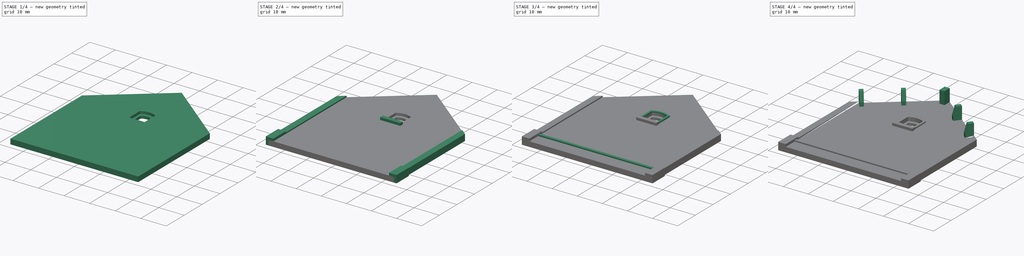
[diagram: build sequence overview — one tinted view per stage of 4, left to right]
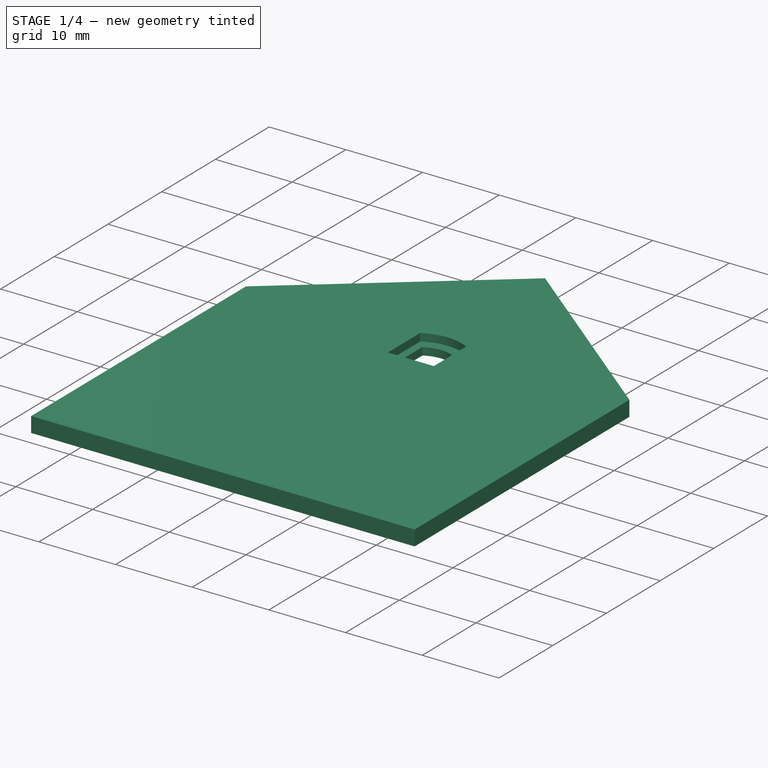
[diagram: stage 1 of 4 — iso view after this stage's code; geometry added in this stage tinted green]
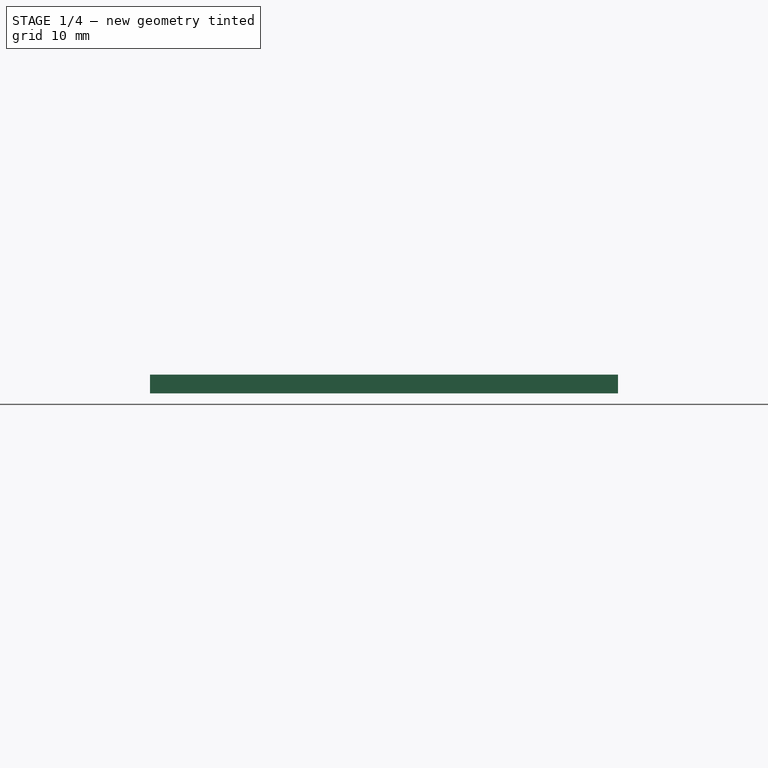
[diagram: stage 1 of 4 — front view after this stage's code; geometry added in this stage tinted green]
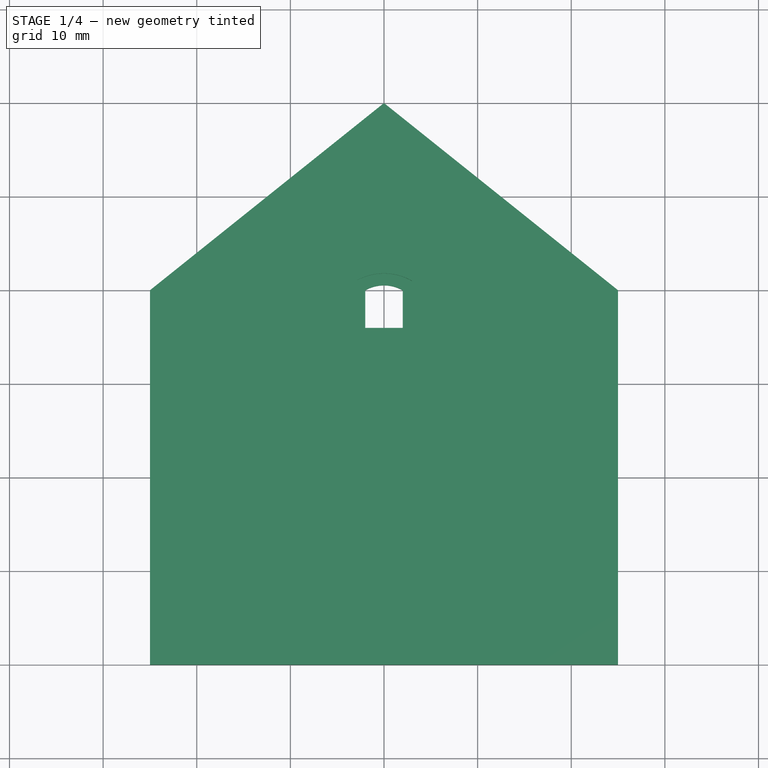
[diagram: stage 1 of 4 — top view after this stage's code; geometry added in this stage tinted green]
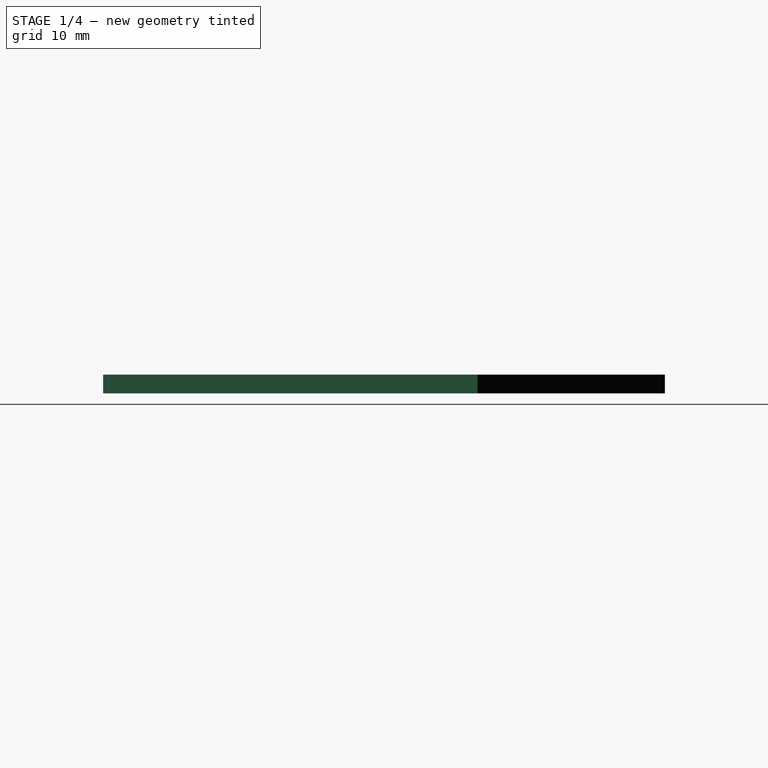
[diagram: stage 1 of 4 — right view after this stage's code; geometry added in this stage tinted green]
FCSTD DOCUMENT  (FreeCAD 0.16R6698 (Git))
Label: 2_1_Face_Arriere
License: All rights reserved
LicenseURL: http://en.wikipedia.org/wiki/All_rights_reserved
objects: Sketcher::SketchObject×11, PartDesign::Pad×7, PartDesign::Pocket×4
note: 33 computed .brp shape members not serialized (recipe doc carries the construction recipe); baked Part::Feature solids carry a one-line shape summary decoded from their .brp

FEATURE [Sketcher::SketchObject] Sketch
  sketch-geometry (5):
    g0: LineSegment StartX=-25 StartY=-20 StartZ=0 EndX=25 EndY=-20 EndZ=0
    g1: LineSegment StartX=-25 StartY=-20 StartZ=0 EndX=-25 EndY=20 EndZ=0
    g2: LineSegment StartX=-25 StartY=20 StartZ=0 EndX=0 EndY=40 EndZ=0
    g3: LineSegment StartX=0 StartY=40 StartZ=0 EndX=25 EndY=20 EndZ=0
    g4: LineSegment StartX=25 StartY=20 StartZ=0 EndX=25 EndY=-20 EndZ=0
  constraints (14):
    c: Horizontal(g0)
    c: Coincident(g1,g0)
    c: Coincident(g2,g1)
    c: PointOnObject(g2,g-2)
    c: Coincident(g3,g2)
    c: Coincident(g4,g3)
    c: Vertical(g4)
    c: Coincident(g0,g4)
    c: Symmetric(g0,g0,g-2)
    c: Symmetric(g0,g1,g-1)
    c: Symmetric(g1,g3,g-2)
    c: DistanceY(g1,g2) = 20
    c: DistanceY(g0,g1) = 40
    c: DistanceX(g0,g0) = 50
FEATURE [PartDesign::Pad] Pad
  Length = 2
  Length2 = 100
  Sketch = -> Sketch
  Type = 0
FEATURE [Sketcher::SketchObject] Sketch001
  Placement = pos=(0,0,2) rot=(0,0,1;0rad)
  Support = -> Pad [Face7]
  sketch-geometry (4):
    g0: LineSegment StartX=-3 StartY=15 StartZ=0 EndX=3 EndY=15 EndZ=0
    g1: LineSegment StartX=-3 StartY=15 StartZ=0 EndX=-3 EndY=21 EndZ=0
    g2: LineSegment StartX=3 StartY=15 StartZ=0 EndX=3 EndY=21 EndZ=0
    g3: ArcOfCircle CenterX=0 CenterY=15.8038 CenterZ=0 NormalX=0 NormalY=0 NormalZ=1 Radius=6 StartAngle=1.0472 EndAngle=2.0944
  constraints (13):
    c: Horizontal(g0)
    c: Coincident(g1,g0)
    c: Vertical(g1)
    c: Coincident(g2,g0)
    c: Vertical(g2)
    c: Symmetric(g1,g2,g-2)
    c: DistanceX(g0,g0) = 6
    c: PointOnObject(g3,g-2)
    c: Coincident(g3,g1)
    c: Coincident(g3,g2)
    c: Radius(g3) = 6
    c: DistanceY(g-1,g0) = 15
    c: DistanceY(g0,g1) = 6
FEATURE [PartDesign::Pocket] Pocket
  Length = 1
  Sketch = -> Sketch001
  Type = 0
FEATURE [Sketcher::SketchObject] Sketch002
  Placement = pos=(0,0,1) rot=(0,0,1;0rad)
  Support = -> Pocket [Face12]
  sketch-geometry (4):
    g0: LineSegment StartX=-2 StartY=16 StartZ=0 EndX=2 EndY=16 EndZ=0
    g1: LineSegment StartX=-2 StartY=16 StartZ=0 EndX=-2 EndY=20 EndZ=0
    g2: LineSegment StartX=2 StartY=16 StartZ=0 EndX=2 EndY=20 EndZ=0
    g3: ArcOfCircle CenterX=0 CenterY=16.5359 CenterZ=0 NormalX=0 NormalY=0 NormalZ=1 Radius=4 StartAngle=1.0472 EndAngle=2.0944
  constraints (13):
    c: Horizontal(g0)
    c: Vertical(g1)
    c: Coincident(g2,g0)
    c: Vertical(g2)
    c: Symmetric(g1,g2,g-2)
    c: PointOnObject(g3,g-2)
    c: Coincident(g3,g1)
    c: Coincident(g3,g2)
    c: Coincident(g1,g0)
    c: DistanceY(g-1,g0) = 16
    c: DistanceY(g0,g1) = 4
    c: DistanceX(g0,g0) = 4
    c: Radius(g3) = 4
FEATURE [PartDesign::Pocket] Pocket001
  Length = 5
  Sketch = -> Sketch002
  Type = 0
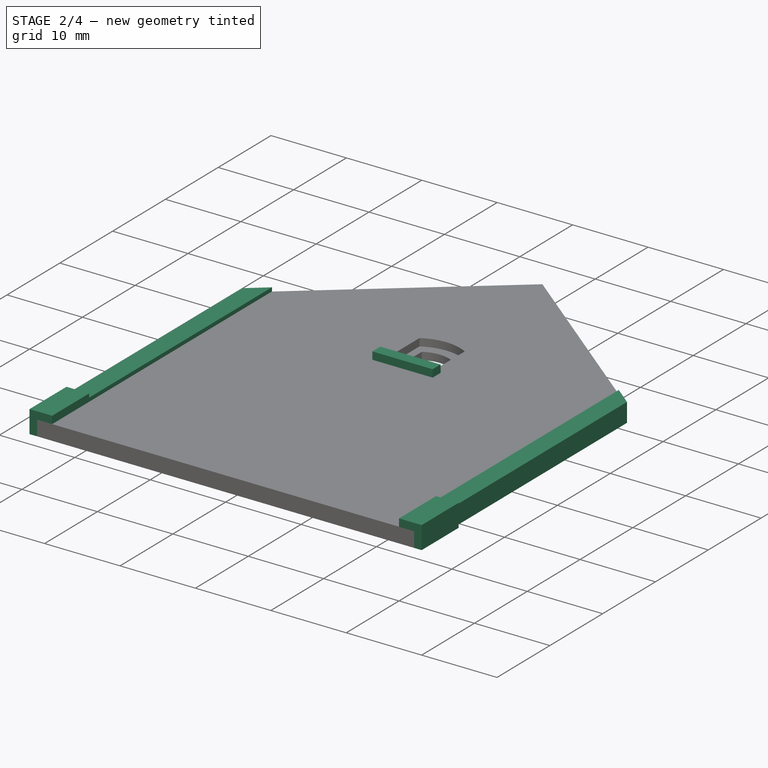
[diagram: stage 2 of 4 — iso view after this stage's code; geometry added in this stage tinted green]
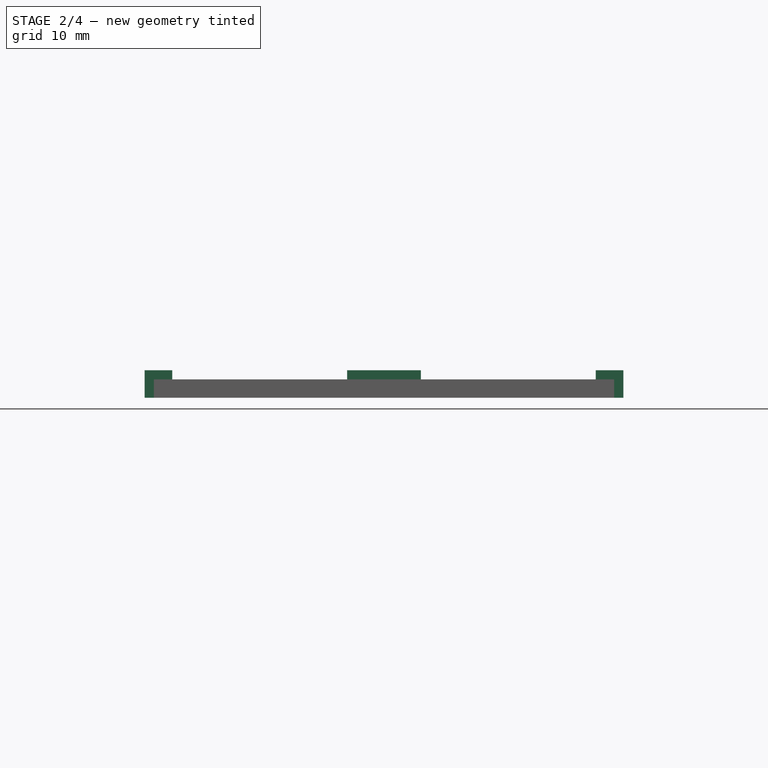
[diagram: stage 2 of 4 — front view after this stage's code; geometry added in this stage tinted green]
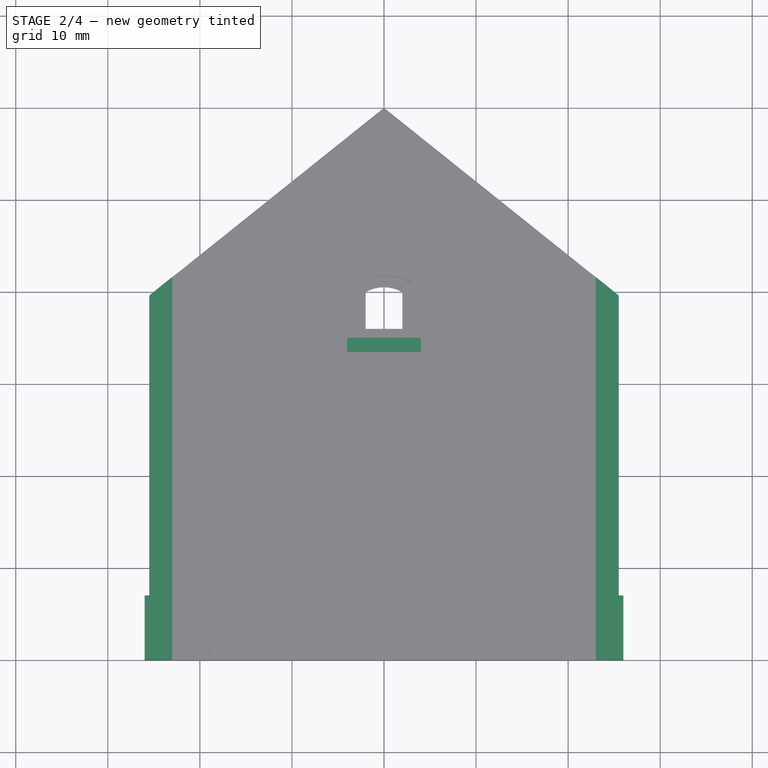
[diagram: stage 2 of 4 — top view after this stage's code; geometry added in this stage tinted green]
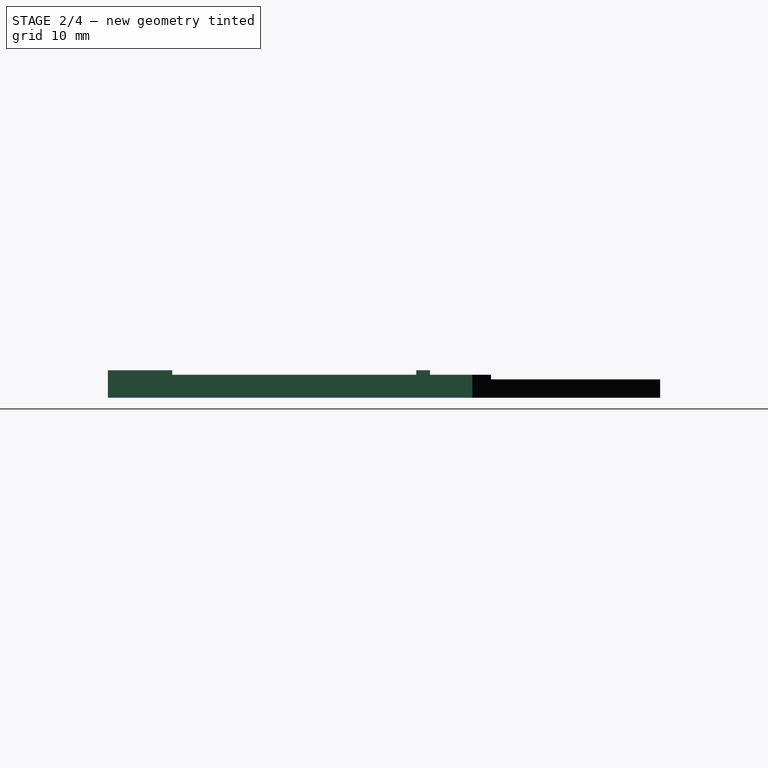
[diagram: stage 2 of 4 — right view after this stage's code; geometry added in this stage tinted green]
FEATURE [Sketcher::SketchObject] Sketch003
  Placement = pos=(0,0,2) rot=(0,0,1;0rad)
  Support = -> Pocket001 [Face5]
  sketch-geometry (4):
    g0: LineSegment StartX=-4 StartY=15 StartZ=0 EndX=4 EndY=15 EndZ=0
    g1: LineSegment StartX=4 StartY=15 StartZ=0 EndX=4 EndY=13.5 EndZ=0
    g2: LineSegment StartX=4 StartY=13.5 StartZ=0 EndX=-4 EndY=13.5 EndZ=0
    g3: LineSegment StartX=-4 StartY=13.5 StartZ=0 EndX=-4 EndY=15 EndZ=0
  constraints (12):
    c: Coincident(g0,g1)
    c: Coincident(g1,g2)
    c: Coincident(g2,g3)
    c: Coincident(g3,g0)
    c: Horizontal(g0)
    c: Horizontal(g2)
    c: Vertical(g1)
    c: Vertical(g3)
    c: DistanceY(g-1,g0) = 15
    c: Symmetric(g0,g0,g-2)
    c: DistanceY(g2,g0) = 1.5
    c: DistanceX(g0,g0) = 8
FEATURE [PartDesign::Pad] Pad001  label="Appui-Fenestrou"
  Length = 1
  Length2 = 100
  Sketch = -> Sketch003
  Type = 0
FEATURE [Sketcher::SketchObject] Sketch006
  Placement = pos=(0,0,0) rot=(1,0,0;3.14159rad)
  Support = -> Pad001 [Face4]
  sketch-geometry (8):
    g0: LineSegment StartX=-26 StartY=20 StartZ=0 EndX=-23 EndY=20 EndZ=0
    g1: LineSegment StartX=-23 StartY=20 StartZ=0 EndX=-23 EndY=13 EndZ=0
    g2: LineSegment StartX=-23 StartY=13 StartZ=0 EndX=-26 EndY=13 EndZ=0
    g3: LineSegment StartX=-26 StartY=13 StartZ=0 EndX=-26 EndY=20 EndZ=0
    g4: LineSegment StartX=23 StartY=20 StartZ=0 EndX=26 EndY=20 EndZ=0
    g5: LineSegment StartX=26 StartY=20 StartZ=0 EndX=26 EndY=13 EndZ=0
    g6: LineSegment StartX=26 StartY=13 StartZ=0 EndX=23 EndY=13 EndZ=0
    g7: LineSegment StartX=23 StartY=13 StartZ=0 EndX=23 EndY=20 EndZ=0
  constraints (23):
    c: Coincident(g0,g1)
    c: Coincident(g1,g2)
    c: Coincident(g2,g3)
    c: Coincident(g3,g0)
    c: Horizontal(g0)
    c: Horizontal(g2)
    c: Vertical(g1)
    c: Vertical(g3)
    c: Coincident(g4,g5)
    c: Coincident(g5,g6)
    c: Coincident(g6,g7)
    c: Coincident(g7,g4)
    c: Horizontal(g4)
    c: Horizontal(g6)
    c: Vertical(g5)
    c: Vertical(g7)
    c: Equal(g3,g7)
    c: Equal(g0,g4)
    c: DistanceX(g0,g0) = 3
    c: DistanceY(g2,g0) = 7
    c: Symmetric(g0,g4,g-2)
    c: DistanceY(g-1,g0) = 20
    c: DistanceX(g-1,g0) = -26
FEATURE [PartDesign::Pad] Pad004  label="Pied-Coin"
  Length = 3
  Length2 = 100
  Reversed = true
  Sketch = -> Sketch006
  Type = 0
FEATURE [Sketcher::SketchObject] Sketch007
  Placement = pos=(0,0,0) rot=(1,0,0;3.14159rad)
  Support = -> Pad004 [Face4]
  sketch-geometry (8):
    g0: LineSegment StartX=-25.5 StartY=20 StartZ=0 EndX=-23 EndY=20 EndZ=0
    g1: LineSegment StartX=-23 StartY=20 StartZ=0 EndX=-23 EndY=-21.6245 EndZ=0
    g2: LineSegment StartX=-23 StartY=-21.6245 StartZ=0 EndX=-25.5 EndY=-19.6 EndZ=0
    g3: LineSegment StartX=-25.5 StartY=20 StartZ=0 EndX=-25.5 EndY=-19.6 EndZ=0
    g4: LineSegment StartX=23 StartY=20 StartZ=0 EndX=25.5 EndY=20 EndZ=0
    g5: LineSegment StartX=25.5 StartY=20 StartZ=0 EndX=25.5 EndY=-19.6 EndZ=0
    g6: LineSegment StartX=25.5 StartY=-19.6 StartZ=0 EndX=23 EndY=-21.6245 EndZ=0
    g7: LineSegment StartX=23 StartY=-21.6245 StartZ=0 EndX=23 EndY=20 EndZ=0
  constraints (22):
    c: Coincident(g1,g0)
    c: Vertical(g1)
    c: Coincident(g2,g1)
    c: Coincident(g3,g0)
    c: Coincident(g3,g2)
    c: Vertical(g3)
    c: Perpendicular(g1,g0)
    c: DistanceX(g0,g-1) = 23
    c: DistanceX(g0,g0) = 2.5
    c: DistanceY(g-1,g0) = 20
    c: Angle(g2,g3,g2) = 2.25147
    c: DistanceY(g2,g0) = 39.6
    c: Horizontal(g4)
    c: Coincident(g5,g4)
    c: Vertical(g5)
    c: Coincident(g6,g5)
    c: Coincident(g7,g6)
    c: Coincident(g7,g4)
    c: Vertical(g7)
    c: Symmetric(g0,g4,g-2)
    c: Symmetric(g1,g6,g-2)
    c: Symmetric(g2,g5,g-2)
FEATURE [PartDesign::Pad] Pad005  label="Coin-Brique"
  Length = 2.5
  Length2 = 100
  Reversed = true
  Sketch = -> Sketch007
  Type = 0
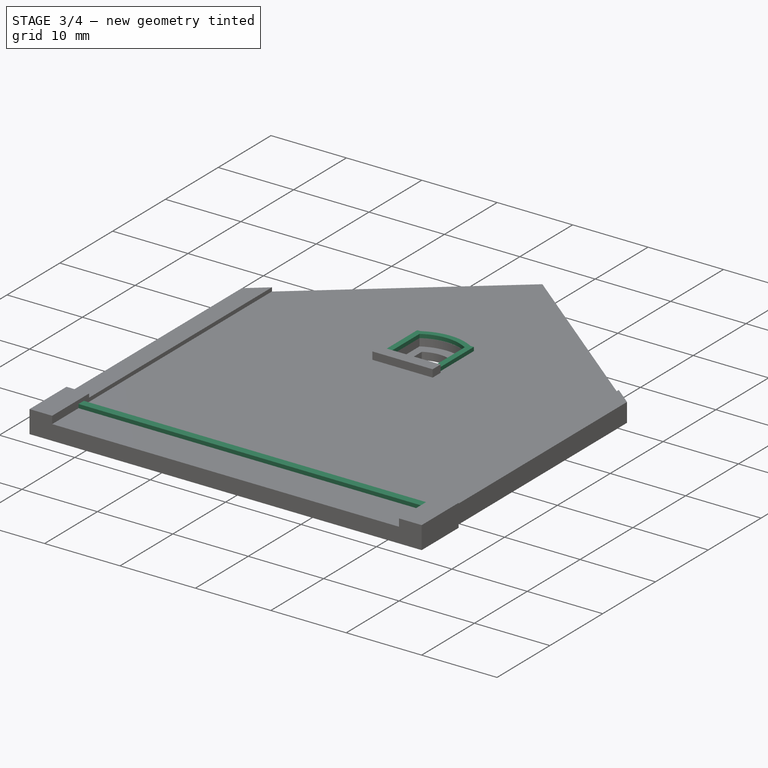
[diagram: stage 3 of 4 — iso view after this stage's code; geometry added in this stage tinted green]
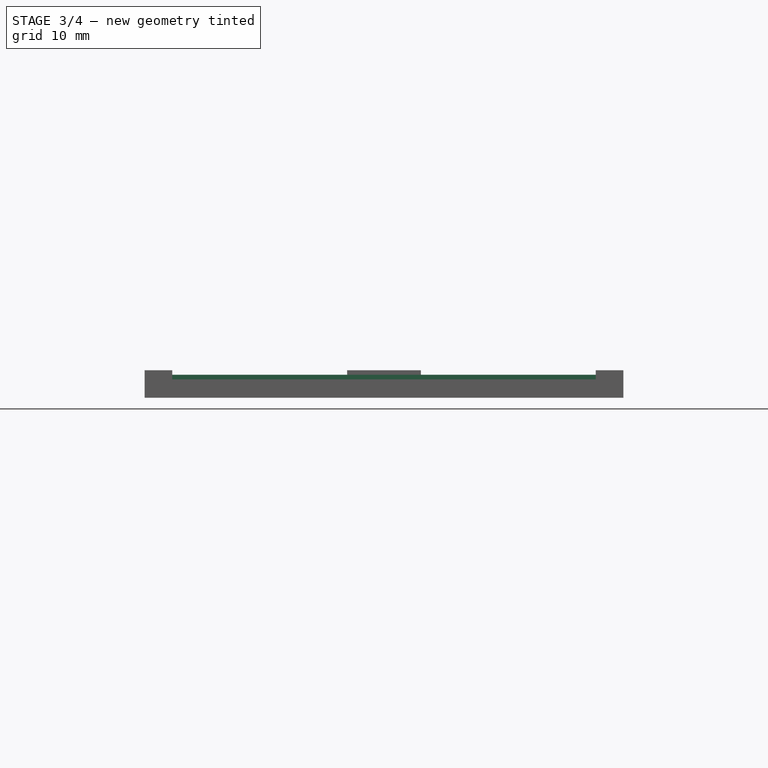
[diagram: stage 3 of 4 — front view after this stage's code; geometry added in this stage tinted green]
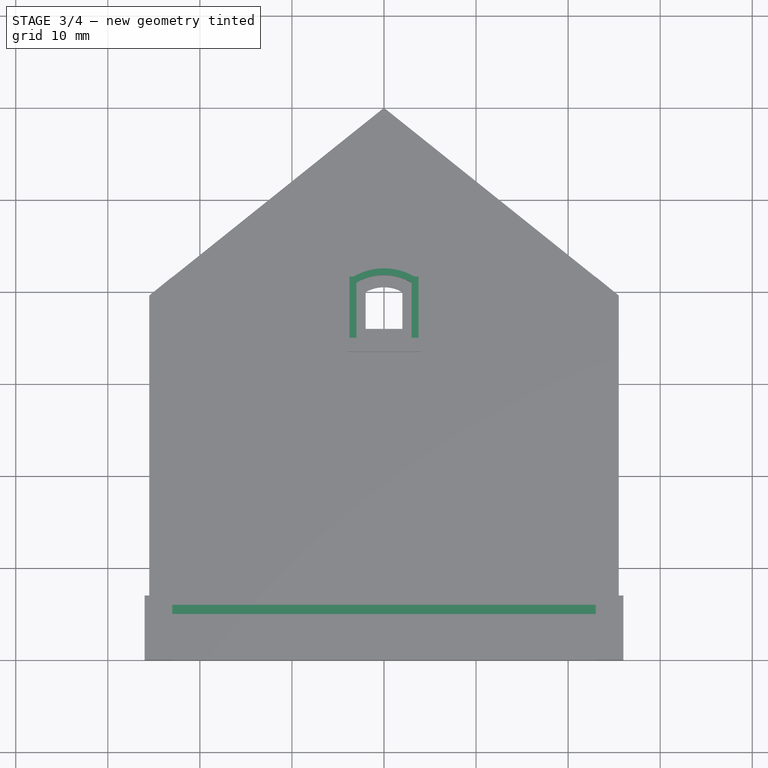
[diagram: stage 3 of 4 — top view after this stage's code; geometry added in this stage tinted green]
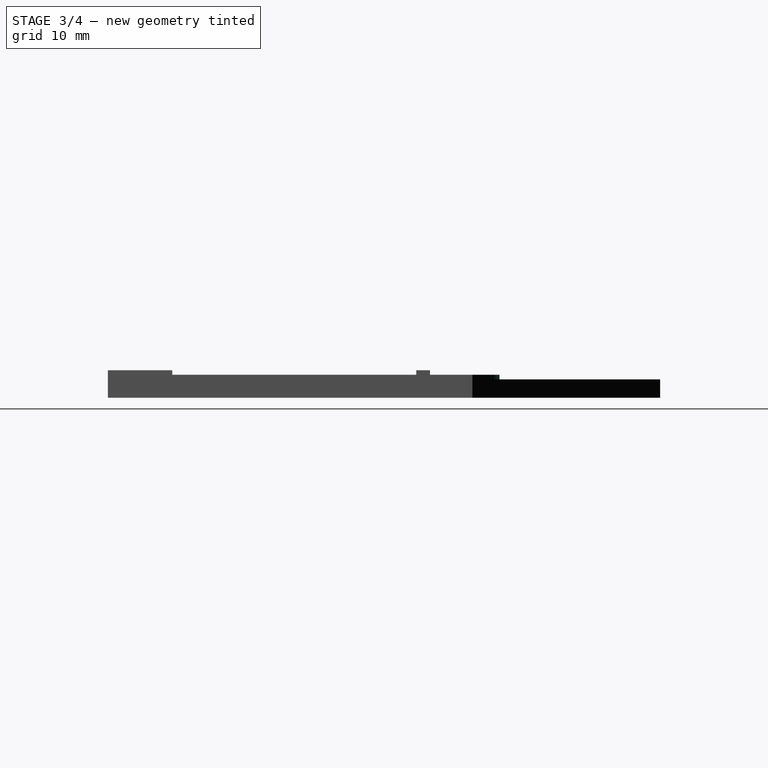
[diagram: stage 3 of 4 — right view after this stage's code; geometry added in this stage tinted green]
FEATURE [Sketcher::SketchObject] Sketch008
  Placement = pos=(0,0,2) rot=(0,0,1;0rad)
  Support = -> Pad005 [Face19]
  sketch-geometry (4):
    g0: LineSegment StartX=-23 StartY=-15 StartZ=0 EndX=-23 EndY=-14 EndZ=0
    g1: LineSegment StartX=23 StartY=-14 StartZ=0 EndX=23 EndY=-15 EndZ=0
    g2: LineSegment StartX=-23 StartY=-15 StartZ=0 EndX=23 EndY=-15 EndZ=0
    g3: LineSegment StartX=-23 StartY=-14 StartZ=0 EndX=23 EndY=-14 EndZ=0
  constraints (11):
    c: Vertical(g0)
    c: Vertical(g1)
    c: DistanceY(g0,g0) = 1
    c: DistanceY(g0,g-1) = 14
    c: Symmetric(g0,g1,g-2)
    c: DistanceX(g0,g-1) = 23
    c: Coincident(g2,g0)
    c: Coincident(g2,g1)
    c: Coincident(g3,g0)
    c: Coincident(g3,g1)
    c: Horizontal(g3)
FEATURE [PartDesign::Pad] Pad006  label="Parement-Bas"
  Length = 0.5
  Length2 = 100
  Sketch = -> Sketch008
  Type = 0
FEATURE [Sketcher::SketchObject] Sketch012
  Placement = pos=(0,0,2) rot=(0,0,1;0rad)
  Support = -> Pad006 [Face19]
  sketch-geometry (12):
    g0: ArcOfCircle CenterX=0 CenterY=16 CenterZ=0 NormalX=0 NormalY=0 NormalZ=1 Radius=5.83095 StartAngle=1.03038 EndAngle=2.11122
    g1: ArcOfCircle CenterX=0 CenterY=16 CenterZ=0 NormalX=0 NormalY=0 NormalZ=1 Radius=6.55 StartAngle=1.04224 EndAngle=2.09936
    g2: LineSegment StartX=3.75 StartY=21.6562 StartZ=0 EndX=3.75 EndY=15 EndZ=0
    g3: LineSegment StartX=3.75 StartY=15 StartZ=0 EndX=3 EndY=15 EndZ=0
    g4: LineSegment StartX=3 StartY=15 StartZ=0 EndX=3 EndY=21 EndZ=0
    g5: LineSegment StartX=-3 StartY=21 StartZ=0 EndX=-3 EndY=15 EndZ=0
    g6: LineSegment StartX=-3.75 StartY=15 StartZ=0 EndX=-3 EndY=15 EndZ=0
    g7: LineSegment StartX=-3.75 StartY=21.6562 StartZ=0 EndX=-3.75 EndY=15 EndZ=0
    g8: LineSegment StartX=-3.3031 StartY=21.6562 StartZ=0 EndX=-3.75 EndY=21.6562 EndZ=0
    g9: LineSegment StartX=3.3031 StartY=21.6562 StartZ=0 EndX=3.75 EndY=21.6562 EndZ=0
    g10: LineSegment StartX=-6.75 StartY=3.17184 StartZ=0 EndX=-6.1651 EndY=3.17184 EndZ=0
    g11: LineSegment StartX=6.1651 StartY=3.17184 StartZ=0 EndX=6.75 EndY=3.17184 EndZ=0
  constraints (30):
    c: PointOnObject(g0,g-2)
    c: DistanceY(g0,g0) = 5
    c: Coincident(g1,g0)
    c: Vertical(g2)
    c: Coincident(g3,g2)
    c: Horizontal(g3)
    c: Coincident(g4,g3)
    c: Coincident(g4,g0)
    c: Vertical(g4)
    c: Vertical(g5)
    c: Coincident(g6,g5)
    c: Horizontal(g6)
    c: DistanceX(g6,g5) = 0.75
    c: Vertical(g7)
    c: Coincident(g7,g6)
    c: Coincident(g5,g0)
    c: Symmetric(g0,g0,g-2)
    c: Symmetric(g5,g3,g-2)
    c: Symmetric(g6,g2,g-2)
    c: Radius(g1) = 6.55
    c: Coincident(g8,g1)
    c: Horizontal(g8)
    c: Coincident(g9,g1)
    c: Horizontal(g9)
    c: Coincident(g7,g8)
    c: Coincident(g2,g9)
    c: Horizontal(g10)
    c: Horizontal(g11)
    c: Symmetric(g10,g11,g-2)
    c: Symmetric(g1,g1,g-2)
FEATURE [PartDesign::Pad] Pad008  label="Parements-Ouvertures"
  Length = 0.5
  Length2 = 100
  Sketch = -> Sketch012
  Type = 0
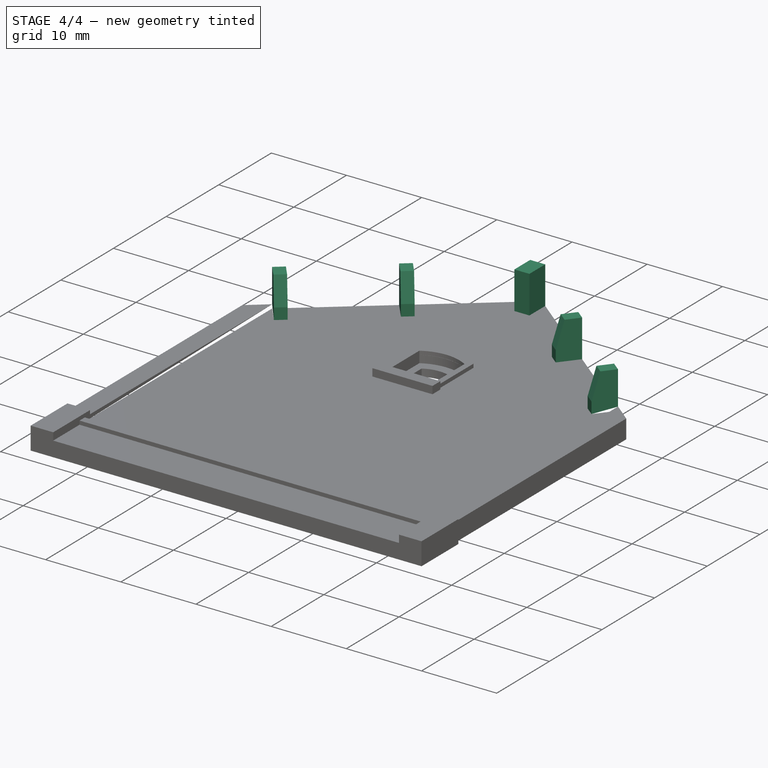
[diagram: stage 4 of 4 — iso view after this stage's code; geometry added in this stage tinted green]
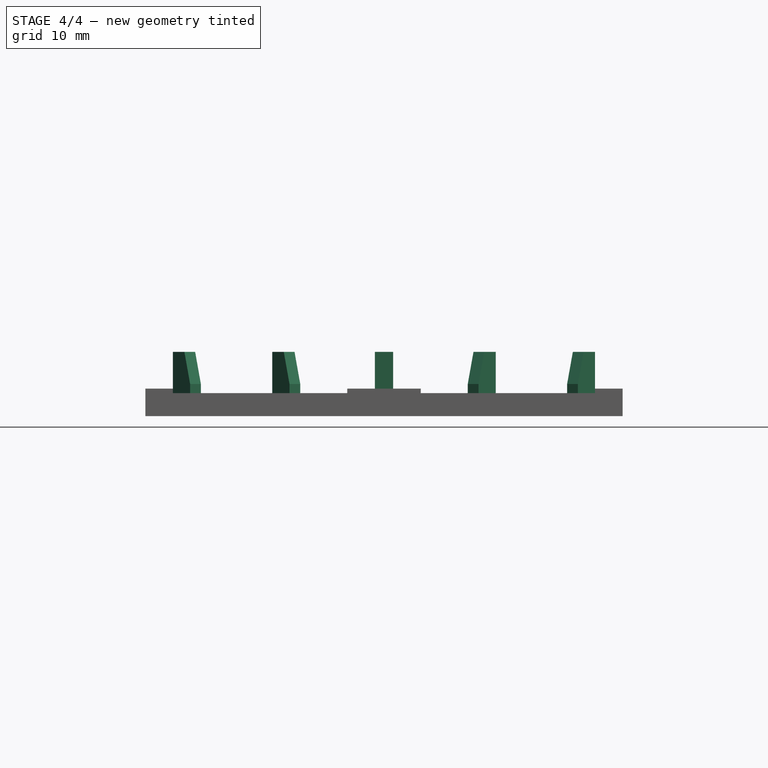
[diagram: stage 4 of 4 — front view after this stage's code; geometry added in this stage tinted green]
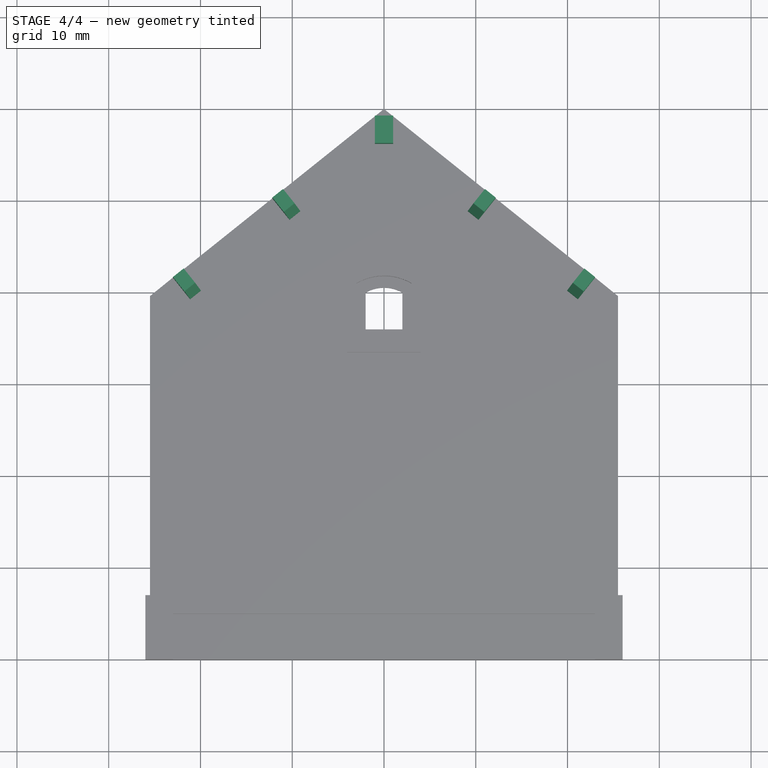
[diagram: stage 4 of 4 — top view after this stage's code; geometry added in this stage tinted green]
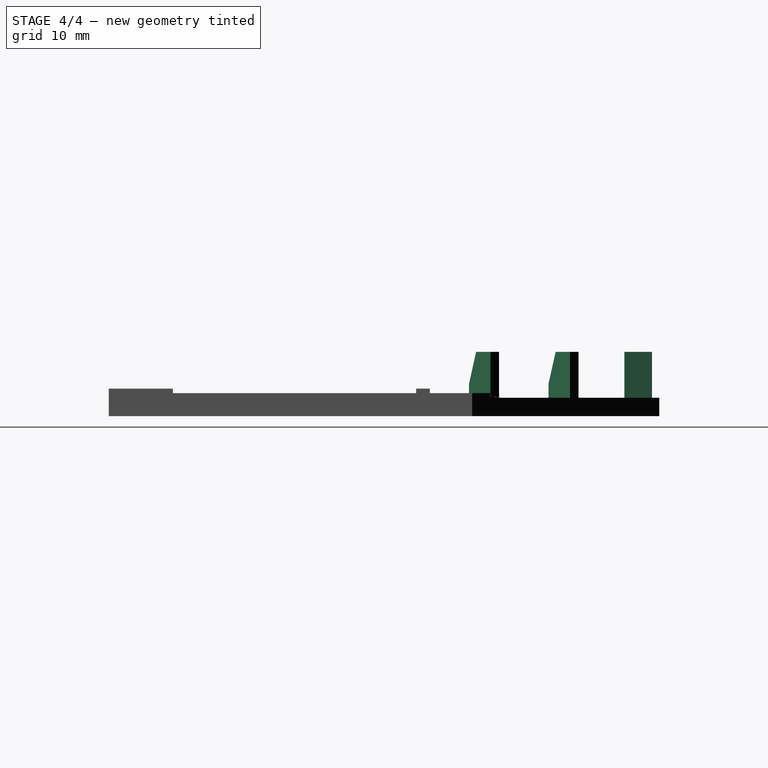
[diagram: stage 4 of 4 — right view after this stage's code; geometry added in this stage tinted green]
FEATURE [Sketcher::SketchObject] Sketch013
  ExternalGeometry = -> [Pad008]
  Placement = pos=(0,0,2) rot=(0,0,1;0rad)
  Support = -> Pad008 [Face28]
  sketch-geometry (20):
    g0: LineSegment StartX=-23 StartY=21.6 StartZ=0 EndX=-21.1259 EndY=19.2574 EndZ=0
    g1: LineSegment StartX=-21.1259 StartY=19.2574 StartZ=0 EndX=-19.9546 EndY=20.1944 EndZ=0
    g2: LineSegment StartX=-19.9546 StartY=20.1944 StartZ=0 EndX=-21.8287 EndY=22.537 EndZ=0
    g3: LineSegment StartX=-21.8287 StartY=22.537 StartZ=0 EndX=-23 EndY=21.6 EndZ=0
    g4: LineSegment StartX=-12.1713 StartY=30.263 StartZ=0 EndX=-11 EndY=31.2 EndZ=0
    g5: LineSegment StartX=-11 StartY=31.2 StartZ=0 EndX=-9.12591 EndY=28.8574 EndZ=0
    g6: LineSegment StartX=-9.12591 StartY=28.8574 StartZ=0 EndX=-10.2972 EndY=27.9204 EndZ=0
    g7: LineSegment StartX=-10.2972 StartY=27.9204 StartZ=0 EndX=-12.1713 EndY=30.263 EndZ=0
    g8: LineSegment StartX=-1 StartY=39.2 StartZ=0 EndX=1 EndY=39.2 EndZ=0
    g9: LineSegment StartX=1 StartY=39.2 StartZ=0 EndX=1 EndY=36.2 EndZ=0
    g10: LineSegment StartX=1 StartY=36.2 StartZ=0 EndX=-1 EndY=36.2 EndZ=0
    g11: LineSegment StartX=-1 StartY=36.2 StartZ=0 EndX=-1 EndY=39.2 EndZ=0
    g12: LineSegment StartX=11 StartY=31.2 StartZ=0 EndX=12.1713 EndY=30.263 EndZ=0
    g13: LineSegment StartX=12.1713 StartY=30.263 StartZ=0 EndX=10.2972 EndY=27.9204 EndZ=0
    g14: LineSegment StartX=10.2972 StartY=27.9204 StartZ=0 EndX=9.12591 EndY=28.8574 EndZ=0
    g15: LineSegment StartX=9.12591 StartY=28.8574 StartZ=0 EndX=11 EndY=31.2 EndZ=0
    g16: LineSegment StartX=21.8287 StartY=22.537 StartZ=0 EndX=23 EndY=21.6 EndZ=0
    g17: LineSegment StartX=23 StartY=21.6 StartZ=0 EndX=21.1259 EndY=19.2574 EndZ=0
    g18: LineSegment StartX=21.1259 StartY=19.2574 StartZ=0 EndX=19.9546 EndY=20.1944 EndZ=0
    g19: LineSegment StartX=19.9546 StartY=20.1944 StartZ=0 EndX=21.8287 EndY=22.537 EndZ=0
  constraints (51):
    c: Coincident(g0,g1)
    c: Coincident(g1,g2)
    c: Coincident(g2,g3)
    c: Coincident(g3,g0)
    c: Coincident(g4,g5)
    c: Coincident(g5,g6)
    c: Coincident(g6,g7)
    c: Coincident(g7,g4)
    c: Horizontal(g8)
    c: Coincident(g8,g9)
    c: Vertical(g9)
    c: Coincident(g9,g10)
    c: Coincident(g10,g11)
    c: Coincident(g11,g8)
    c: Coincident(g12,g13)
    c: Coincident(g13,g14)
    c: Coincident(g14,g15)
    c: Coincident(g15,g12)
    c: Coincident(g16,g17)
    c: Coincident(g17,g18)
    c: Coincident(g18,g19)
    c: Coincident(g19,g16)
    c: Perpendicular(g3,g0)
    c: Perpendicular(g0,g1)
    c: Perpendicular(g1,g2)
    c: Perpendicular(g6,g7)
    c: Perpendicular(g7,g4)
    c: Perpendicular(g5,g4)
    c: Perpendicular(g10,g11)
    c: Perpendicular(g11,g8)
    c: Equal(g1,g6)
    c: Equal(g2,g5)
    c: Distance(g4,g5) = 3
    c: DistanceY(g9,g8) = 3
    c: DistanceX(g8,g8) = 2
    c: PointOnObject(g8,g-3)
    c: PointOnObject(g8,g-4)
    c: Distance(g6,g5) = 1.5
    c: Coincident(g0,g-3)
    c: PointOnObject(g2,g-3)
    c: PointOnObject(g4,g-3)
    c: PointOnObject(g4,g-3)
    c: DistanceX(g4,g-4) = 11
    c: Symmetric(g4,g12,g-2)
    c: Symmetric(g4,g12,g-2)
    c: Symmetric(g5,g14,g-2)
    c: Symmetric(g6,g13,g-2)
    c: Symmetric(g16,g2,g-2)
    c: Symmetric(g0,g16,g-2)
    c: Symmetric(g1,g18,g-2)
    c: Symmetric(g0,g17,g-2)
FEATURE [PartDesign::Pad] Pad009  label="Poutres"
  Length = 5
  Length2 = 100
  Sketch = -> Sketch013
  Type = 0
FEATURE [Sketcher::SketchObject] Sketch014
  ExternalGeometry = -> [Pad009]
  Placement = pos=(-3.4878,-2.79024,0) rot=(0.827039,-0.397496,-0.397496;1.75957rad)
  Support = -> Pad009 [Face72]
  sketch-geometry (3):
    g0: LineSegment StartX=-29.2348 StartY=7 StartZ=0 EndX=-28.2348 EndY=7 EndZ=0
    g1: LineSegment StartX=-28.2348 StartY=7 StartZ=0 EndX=-28.2348 EndY=3.5 EndZ=0
    g2: LineSegment StartX=-28.2348 StartY=3.5 StartZ=0 EndX=-29.2348 EndY=7 EndZ=0
  constraints (8):
    c: Horizontal(g0)
    c: Coincident(g1,g0)
    c: Vertical(g1)
    c: Coincident(g2,g1)
    c: Coincident(g2,g0)
    c: DistanceX(g0,g0) = 1
    c: DistanceY(g1,g0) = 3.5
    c: Coincident(g-3,g0)
FEATURE [PartDesign::Pocket] Pocket002  label="Goutte-Eau-G"
  Length = 20
  Sketch = -> Sketch014
  Type = 0
FEATURE [Sketcher::SketchObject] Sketch015
  ExternalGeometry = -> [Pocket002]
  Placement = pos=(3.4878,-2.79024,0) rot=(0.827039,0.397496,0.397496;1.75957rad)
  Support = -> Pocket002 [Face56]
  sketch-geometry (3):
    g0: LineSegment StartX=29.2348 StartY=7 StartZ=0 EndX=28.2348 EndY=7 EndZ=0
    g1: LineSegment StartX=28.2348 StartY=7 StartZ=0 EndX=28.2348 EndY=3.5 EndZ=0
    g2: LineSegment StartX=28.2348 StartY=3.5 StartZ=0 EndX=29.2348 EndY=7 EndZ=0
  constraints (8):
    c: Horizontal(g0)
    c: Coincident(g0,g1)
    c: Vertical(g1)
    c: Coincident(g1,g2)
    c: Coincident(g2,g0)
    c: DistanceY(g1,g0) = 3.5
    c: DistanceX(g0,g0) = 1
    c: Coincident(g0,g-3)
FEATURE [PartDesign::Pocket] Pocket003
  Length = 20
  Sketch = -> Sketch015
  Type = 0
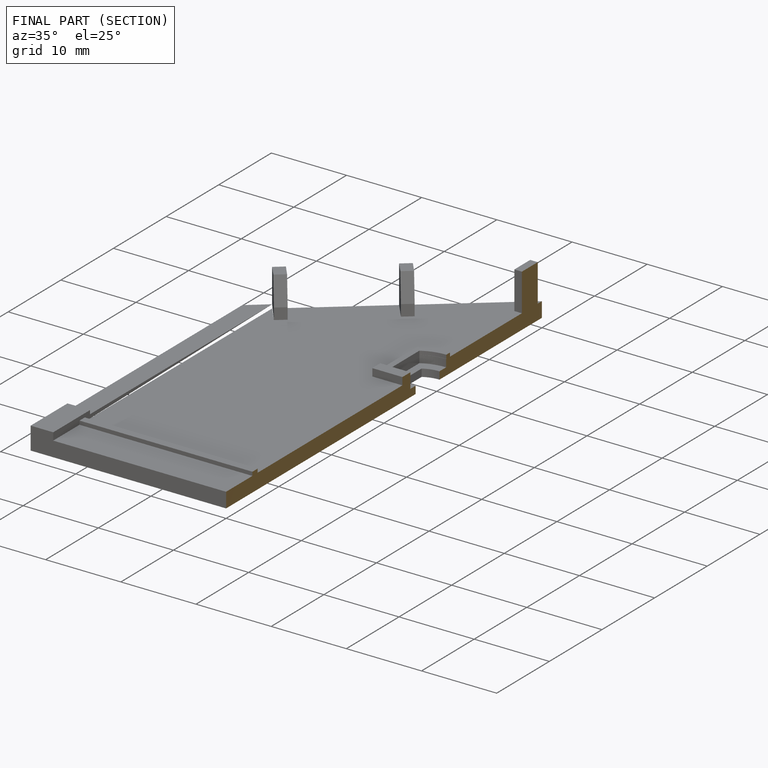
[diagram: finished part — half-section view (interior)]
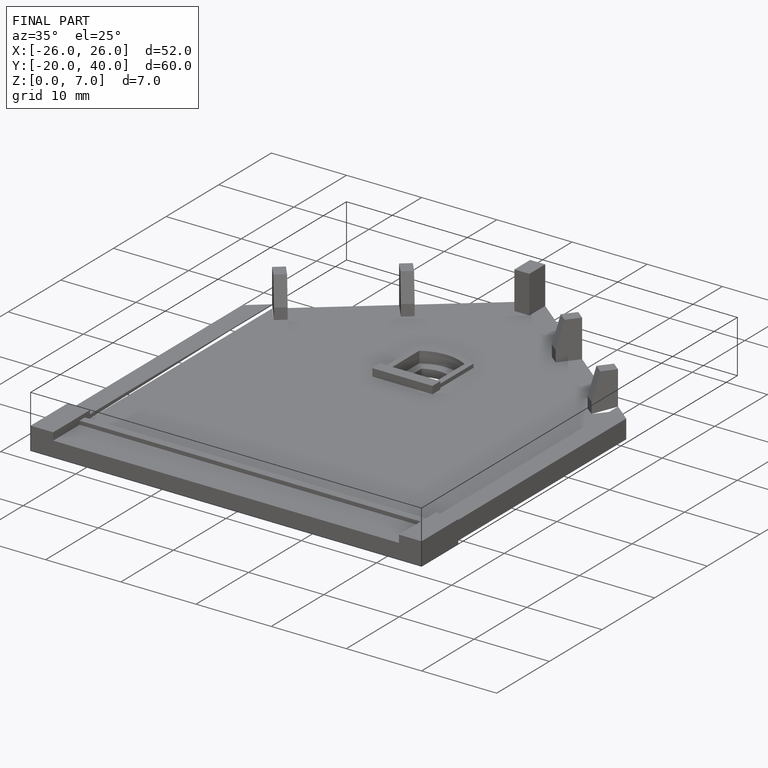
[diagram: finished part — iso view with bounding-box wireframe]
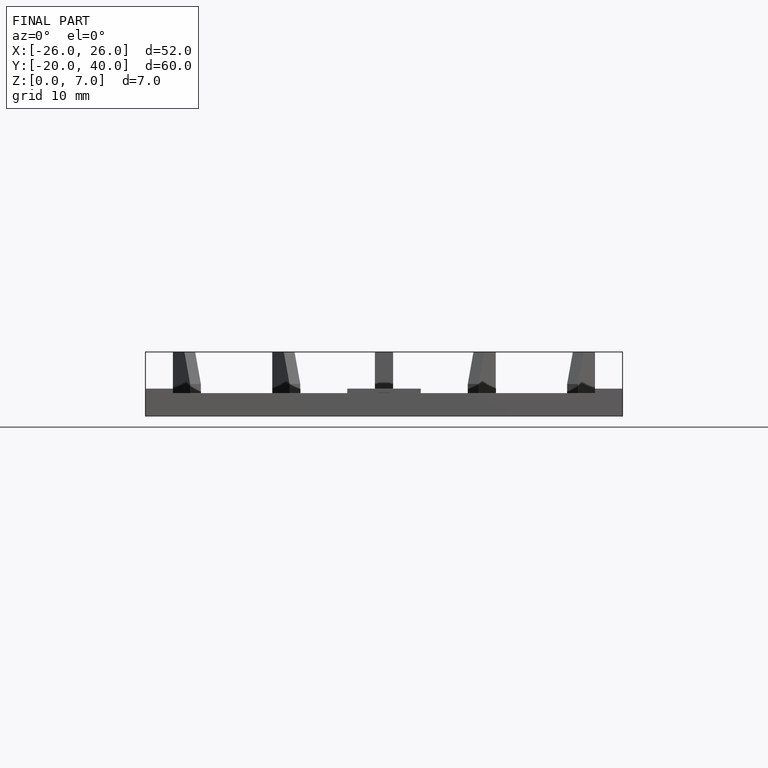
[diagram: finished part — front view with bounding-box wireframe]
